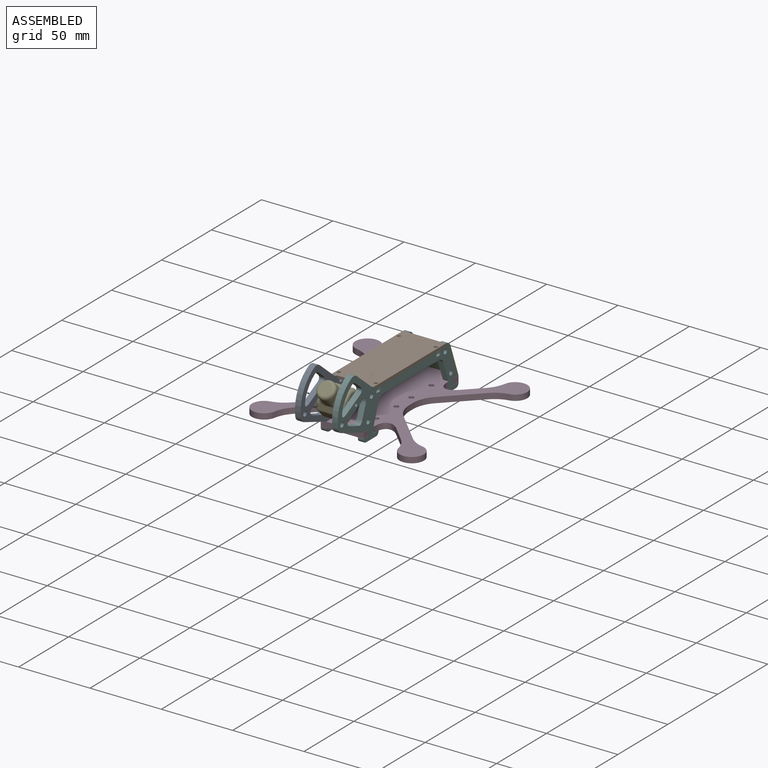
[diagram: assembled view]
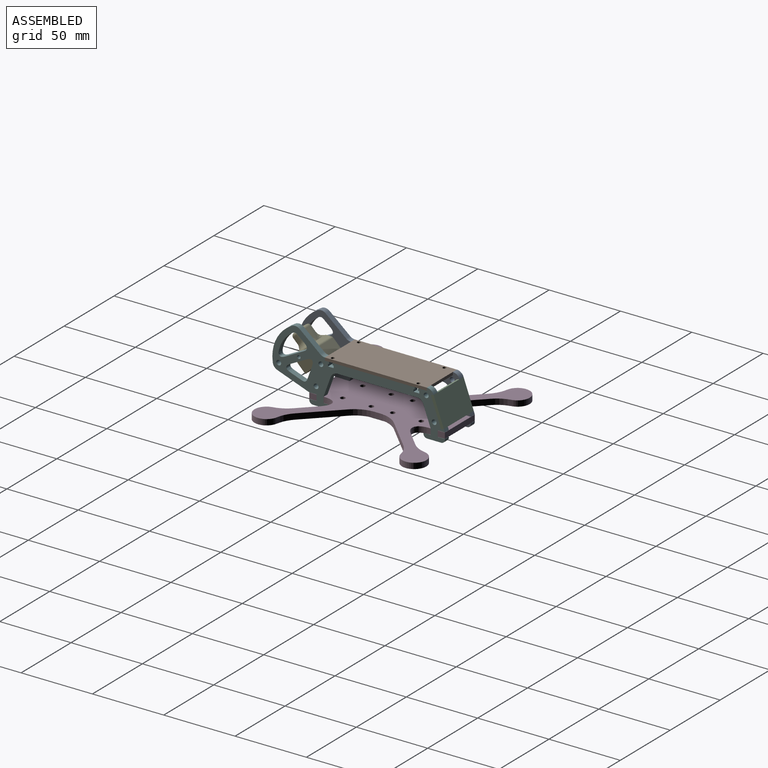
[diagram: assembled view, second angle]
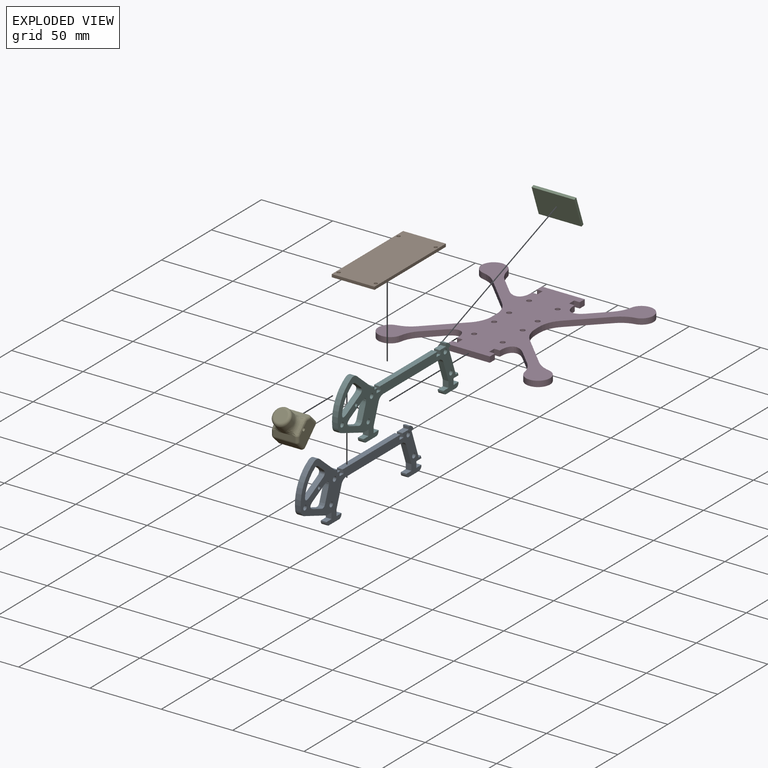
[diagram: exploded view]
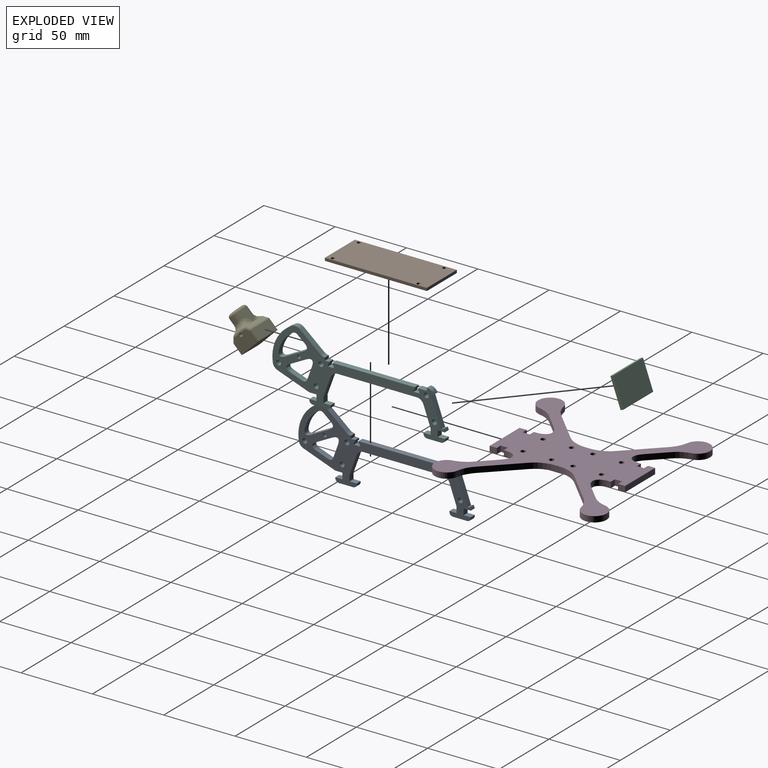
[diagram: exploded view, second angle]
ASSEMBLY  parts=6 mates=5
PART A: 79 faces, bbox 5.5x122x47.8 mm
  f0: plane 4x3mm, normal (0,0,1), area 12mm2, adj f3,f4,f60,f68
  f1: plane 57.7x4mm, normal (0,0,1), area 230.8mm2, adj f3,f4,f63,f74
  f2: plane 4x2mm, normal (0,0.94,0.34), area 8.5mm2, adj f3,f4,f15,f56
  f3: plane 122.04x47.78mm, normal (1,0,0), area 1410.4mm2, adj f0,f1,f2,f5,f6,f7,f8,f9
  f4: plane 122.04x47.78mm, normal (-1,0,0), area 1410.4mm2, adj f0,f1,f2,f5,f6,f7,f8,f9
  f5: plane 13.15x6.9mm, normal (0,-0.46,0.89), area 59.4mm2, adj f3,f4,f44,f45
  f6: cylinder r=22mm len=12.88mm, axis (-1,0,0), area 65.3mm2, adj f3,f4,f44,f48
  f7: plane 13.71x4.99mm, normal (0,-0.94,-0.34), area 58.4mm2, adj f3,f4,f8,f42
  f8: plane 4.2x4mm, normal (0,-1,0), area 16.8mm2, adj f3,f4,f7,f9
  f9: plane 5x4mm, normal (0,0,1), area 20mm2, adj f3,f4,f8,f10
  f10: plane 4x0.5mm, normal (0,-1,0), area 2mm2, adj f3,f4,f9,f33
  f11: plane 10x4mm, normal (0,0,-1), area 40mm2, adj f3,f4,f33,f34
  f12: plane 4x0.5mm, normal (0,1,0), area 2mm2, adj f3,f4,f13,f34
  f13: plane 5x4mm, normal (0,0,1), area 20mm2, adj f3,f4,f12,f14
  f14: plane 4.2x4mm, normal (0,1,0), area 16.8mm2, adj f3,f4,f13,f15
  f15: plane 5x4mm, normal (0,0,-1), area 20mm2, adj f2,f3,f4,f14
  f16: plane 14.43x12.11mm, normal (0,0.64,0.77), area 75.3mm2, adj f3,f4,f38,f39
  f17: cylinder r=26mm len=26.75mm, axis (-1,0,0), area 127.2mm2, adj f3,f4,f39,f40
  f18: plane 22.37x8.14mm, normal (0,-0.34,-0.94), area 95.2mm2, adj f3,f4,f19,f40
  f19: plane 5x4mm, normal (0,0,-1), area 20mm2, adj f3,f4,f18,f20
  f20: plane 4.2x4mm, normal (0,-1,0), area 16.8mm2, adj f3,f4,f19,f21
  f21: plane 5x4mm, normal (0,0,1), area 20mm2, adj f3,f4,f20,f22
  f22: plane 4x0.5mm, normal (0,-1,0), area 2mm2, adj f3,f4,f21,f35
  f23: plane 10x4mm, normal (0,0,-1), area 40mm2, adj f3,f4,f35,f36
  f24: plane 4x0.5mm, normal (0,1,0), area 2mm2, adj f3,f4,f25,f36
  f25: plane 5x4mm, normal (0,0,1), area 20mm2, adj f3,f4,f24,f26
  f26: plane 4.2x4mm, normal (0,1,0), area 16.8mm2, adj f3,f4,f25,f27
  f27: plane 13.71x4.99mm, normal (0,0.94,-0.34), area 58.4mm2, adj f3,f4,f26,f41
  f28: plane 7.74x4mm, normal (0,0.34,0.94), area 32.9mm2, adj f3,f4,f43,f47
  f29: plane 10.83x5.69mm, normal (0,0.46,-0.89), area 48.9mm2, adj f3,f4,f43,f46
  f30: plane 55.62x4mm, normal (0,0,-1), area 222.5mm2, adj f3,f4,f41,f42
  f31: plane 8.5x4mm, normal (0,-0.94,0.34), area 36.2mm2, adj f3,f4,f46,f47
  f32: plane 5.03x4.22mm, normal (0,-0.64,-0.77), area 26.3mm2, adj f3,f4,f45,f48
  f33: cylinder r=2.5mm len=4mm, axis (-1,0,0), area 15.7mm2, adj f3,f4,f10,f11
  f34: cylinder r=2.5mm len=4mm, axis (-1,0,0), area 15.7mm2, adj f3,f4,f11,f12
  f35: cylinder r=2.5mm len=4mm, axis (-1,0,0), area 15.7mm2, adj f3,f4,f22,f23
  f36: cylinder r=2.5mm len=4mm, axis (-1,0,0), area 15.7mm2, adj f3,f4,f23,f24
  f37: cylinder r=5mm len=4.7mm, axis (1,0,0), area 24.4mm2, adj f3,f4,f55,f58
  f38: cylinder r=5mm len=4mm, axis (-1,0,0), area 14mm2, adj f3,f4,f16,f60
  f39: cylinder r=5mm len=5.6mm, axis (-1,0,0), area 23.9mm2, adj f3,f4,f16,f17
  f40: cylinder r=5mm len=4mm, axis (-1,0,0), area 21.4mm2, adj f3,f4,f17,f18
  f41: cylinder r=5mm len=4.7mm, axis (1,0,0), area 24.4mm2, adj f3,f4,f27,f30
  f42: cylinder r=5mm len=4.7mm, axis (-1,0,0), area 24.4mm2, adj f3,f4,f7,f30
  f43: bspline ~6.38x5.48mm, area 34mm2, adj f3,f4,f28,f29
  f44: bspline ~6.6x6.05mm, area 34.1mm2, adj f3,f4,f5,f6
  f45: bspline ~4.95x4.4mm, area 25.5mm2, adj f3,f4,f5,f32
  f46: bspline ~7.29x6.87mm, area 37.4mm2, adj f3,f4,f29,f31
  f47: bspline ~4.4x3.85mm, area 19.3mm2, adj f3,f4,f28,f31
  f48: bspline ~4.4x3.55mm, area 15.3mm2, adj f3,f4,f6,f32
  f49: cylinder r=1.7mm len=4mm, axis (-1,0,0), area 42.7mm2, adj f3,f4
  f50: cylinder r=1.7mm len=4mm, axis (-1,0,0), area 42.7mm2, adj f3,f4
  f51: cylinder r=1.7mm len=4mm, axis (-1,0,0), area 42.7mm2, adj f3,f4
  f52: cylinder r=1.7mm len=4mm, axis (-1,0,0), area 42.7mm2, adj f3,f4
  f53: cylinder r=1.7mm len=4mm, axis (-1,0,0), area 42.7mm2, adj f3,f4
  f54: cylinder r=1.2mm len=4mm, axis (-1,0,0), area 30.2mm2, adj f3,f4
  f55: plane 4x1.88mm, normal (0,0.34,-0.94), area 8mm2, adj f3,f4,f37,f57
  f56: plane 4x1.88mm, normal (0,-0.34,0.94), area 8mm2, adj f2,f3,f4,f57
  f57: plane 19.71x7.17mm, normal (0,0.94,0.34), area 83.9mm2, adj f3,f4,f55,f56
  f58: plane 4x2mm, normal (0,-1,0), area 8mm2, adj f3,f4,f37,f59
  f59: plane 6.18x4mm, normal (0,0,1), area 24.7mm2, adj f3,f4,f58,f62
  f60: plane 4x2mm, normal (0,1,0), area 8mm2, adj f0,f3,f4,f38
  f61: plane 4x0.55mm, normal (0,0,-1), area 2.2mm2, adj f3,f4,f67,f75
  f62: plane 4x1.2mm, normal (0,-1,0), area 4.8mm2, adj f3,f4,f59,f75
  f63: plane 4x1.2mm, normal (0,1,0), area 4.8mm2, adj f1,f3,f4,f76
  f64: plane 4x0.55mm, normal (0,0,-1), area 2.2mm2, adj f3,f4,f65,f76
  f65: plane 4x1.6mm, normal (0,1,0), area 6.4mm2, adj f3,f4,f64,f66
  f66: plane 4x4mm, normal (0,0,1), area 16mm2, adj f3,f4,f65,f67
  f67: plane 4x1.6mm, normal (0,-1,0), area 6.4mm2, adj f3,f4,f61,f66
  f68: plane 4x1.2mm, normal (0,1,0), area 4.8mm2, adj f0,f3,f4,f78
  f69: plane 4x0.55mm, normal (0,0,-1), area 2.2mm2, adj f3,f4,f70,f78
  f70: plane 4x1.6mm, normal (0,1,0), area 6.4mm2, adj f3,f4,f69,f71
  f71: plane 4x4mm, normal (0,0,1), area 16mm2, adj f3,f4,f70,f72
  f72: plane 4x1.6mm, normal (0,-1,0), area 6.4mm2, adj f3,f4,f71,f73
  f73: plane 4x0.55mm, normal (0,0,-1), area 2.2mm2, adj f3,f4,f72,f77
  f74: plane 4x1.2mm, normal (0,-1,0), area 4.8mm2, adj f1,f3,f4,f77
  f75: cylinder r=0.3mm len=4mm, axis (1,0,0), area 1.9mm2, adj f3,f4,f61,f62
  f76: cylinder r=0.3mm len=4mm, axis (1,0,0), area 1.9mm2, adj f3,f4,f63,f64
  f77: cylinder r=0.3mm len=4mm, axis (1,0,0), area 1.9mm2, adj f3,f4,f73,f74
  f78: cylinder r=0.3mm len=4mm, axis (1,0,0), area 1.9mm2, adj f3,f4,f68,f69
PART B: 10 faces, bbox 30x71.5x2 mm
  f0: plane 71.48x30mm, normal (0,0,1), area 2126.3mm2, adj f1,f3,f4,f5,f6,f7,f8,f9
  f1: plane 71.48x2mm, normal (1,0,0), area 143mm2, adj f0,f2,f3,f4
  f2: plane 71.48x30mm, normal (0,0,-1), area 2126.3mm2, adj f1,f3,f4,f5,f6,f7,f8,f9
  f3: plane 30x2mm, normal (0,1,0), area 60mm2, adj f0,f1,f2,f5
  f4: plane 30x2mm, normal (0,-1,0), area 60mm2, adj f0,f1,f2,f5
  f5: plane 71.48x2mm, normal (-1,0,0), area 143mm2, adj f0,f2,f3,f4
  f6: cylinder r=1.2mm len=2.4mm, axis (0,0,-1), area 15.1mm2, adj f0,f2
  f7: cylinder r=1.2mm len=2.4mm, axis (0,0,-1), area 15.1mm2, adj f0,f2
  f8: cylinder r=1.2mm len=2.4mm, axis (0,0,-1), area 15.1mm2, adj f0,f2
  f9: cylinder r=1.2mm len=2.4mm, axis (0,0,-1), area 15.1mm2, adj f0,f2
PART C: 6 faces, bbox 30x21x2 mm
  f0: plane 30x20.98mm, normal (0,0,1), area 629.3mm2, adj f1,f3,f4,f5
  f1: plane 20.98x2mm, normal (1,0,0), area 42mm2, adj f0,f2,f3,f4
  f2: plane 30x20.98mm, normal (0,0,-1), area 629.3mm2, adj f1,f3,f4,f5
  f3: plane 30x2mm, normal (0,1,0), area 60mm2, adj f0,f1,f2,f5
  f4: plane 30x2mm, normal (0,-1,0), area 60mm2, adj f0,f1,f2,f5
  f5: plane 20.98x2mm, normal (-1,0,0), area 42mm2, adj f0,f2,f3,f4
PART D: 62 faces, bbox 121.6x121.6x5.5 mm
  f0: plane 10.92x10.92mm, normal (0.71,0.71,0), area 61.8mm2, adj f3,f4,f40,f46
  f1: cylinder r=8.5mm len=16.86mm, axis (0,0,-1), area 147.7mm2, adj f3,f4,f46,f47
  f2: plane 21.97x21.97mm, normal (-0.71,-0.71,0), area 124.3mm2, adj f3,f4,f42,f47
  f3: plane 121.58x121.58mm, normal (0,0,1), area 5097mm2, adj f0,f1,f2,f5,f6,f7,f8,f9
  f4: plane 121.58x121.58mm, normal (0,0,-1), area 5097mm2, adj f0,f1,f2,f5,f6,f7,f8,f9
  f5: plane 4x3.53mm, normal (-1,0,0), area 14.1mm2, adj f3,f4,f42,f43
  f6: plane 4x0.65mm, normal (-1,0,0), area 2.6mm2, adj f3,f4,f19,f38
  f7: plane 4x0.65mm, normal (1,0,0), area 2.6mm2, adj f3,f4,f27,f41
  f8: plane 4x3.53mm, normal (1,0,0), area 14.1mm2, adj f3,f4,f44,f45
  f9: plane 4x4mm, normal (0,1,0), area 16mm2, adj f3,f4,f10,f28
  f10: plane 5x4mm, normal (1,0,0), area 20mm2, adj f3,f4,f9,f11
  f11: plane 4x4mm, normal (0,-1,0), area 16mm2, adj f3,f4,f10,f12
  f12: plane 5x4mm, normal (1,0,0), area 20mm2, adj f3,f4,f11,f13
  f13: plane 30x4mm, normal (0,1,0), area 120mm2, adj f3,f4,f12,f14
  f14: plane 5x4mm, normal (-1,0,0), area 20mm2, adj f3,f4,f13,f15
  f15: plane 4x4mm, normal (0,-1,0), area 16mm2, adj f3,f4,f14,f16
  f16: plane 5x4mm, normal (-1,0,0), area 20mm2, adj f3,f4,f15,f17
  f17: plane 4x4mm, normal (0,1,0), area 16mm2, adj f3,f4,f16,f18
  f18: plane 4x0.65mm, normal (-1,0,0), area 2.6mm2, adj f3,f4,f17,f40
  f19: plane 4x4mm, normal (0,-1,0), area 16mm2, adj f3,f4,f6,f20
  f20: plane 5x4mm, normal (-1,0,0), area 20mm2, adj f3,f4,f19,f21
  f21: plane 4x4mm, normal (0,1,0), area 16mm2, adj f3,f4,f20,f22
  f22: plane 5x4mm, normal (-1,0,0), area 20mm2, adj f3,f4,f21,f23
  f23: plane 30x4mm, normal (0,-1,0), area 120mm2, adj f3,f4,f22,f24
  f24: plane 5x4mm, normal (1,0,0), area 20mm2, adj f3,f4,f23,f25
  f25: plane 4x4mm, normal (0,1,0), area 16mm2, adj f3,f4,f24,f26
  f26: plane 5x4mm, normal (1,0,0), area 20mm2, adj f3,f4,f25,f27
  f27: plane 4x4mm, normal (0,-1,0), area 16mm2, adj f3,f4,f7,f26
  f28: plane 4x0.65mm, normal (1,0,0), area 2.6mm2, adj f3,f4,f9,f39
  f29: plane 10.92x10.92mm, normal (-0.71,0.71,0), area 61.8mm2, adj f3,f4,f39,f52
  f30: plane 21.97x21.97mm, normal (0.71,-0.71,0), area 124.3mm2, adj f3,f4,f45,f53
  f31: cylinder r=8.5mm len=16.86mm, axis (0,0,-1), area 147.7mm2, adj f3,f4,f52,f53
  f32: plane 10.92x10.92mm, normal (-0.71,-0.71,0), area 61.8mm2, adj f3,f4,f41,f50
  f33: plane 21.97x21.97mm, normal (0.71,0.71,0), area 124.3mm2, adj f3,f4,f44,f51
  f34: cylinder r=8.5mm len=16.86mm, axis (0,0,-1), area 147.7mm2, adj f3,f4,f50,f51
  f35: plane 21.97x21.97mm, normal (-0.71,0.71,0), area 124.3mm2, adj f3,f4,f43,f48
  f36: cylinder r=8.5mm len=16.86mm, axis (0,0,-1), area 147.7mm2, adj f3,f4,f48,f49
  f37: plane 10.92x10.92mm, normal (0.71,-0.71,0), area 61.8mm2, adj f3,f4,f38,f49
  f38: bspline ~16.9x11.95mm, area 76mm2, adj f3,f4,f6,f37
  f39: bspline ~16.9x11.95mm, area 76mm2, adj f3,f4,f28,f29
  f40: bspline ~16.9x11.95mm, area 76mm2, adj f0,f3,f4,f18
  f41: bspline ~16.9x11.95mm, area 76mm2, adj f3,f4,f7,f32
  f42: cylinder r=20mm len=14.14mm, axis (0,0,1), area 62.8mm2, adj f2,f3,f4,f5
  f43: cylinder r=20mm len=14.14mm, axis (0,0,1), area 62.8mm2, adj f3,f4,f5,f35
  f44: cylinder r=20mm len=14.14mm, axis (0,0,-1), area 62.8mm2, adj f3,f4,f8,f33
  f45: cylinder r=20mm len=14.14mm, axis (0,0,1), area 62.8mm2, adj f3,f4,f8,f30
  f46: cylinder r=20mm len=10.48mm, axis (0,0,-1), area 48.1mm2, adj f0,f1,f3,f4
  f47: cylinder r=20mm len=10.48mm, axis (0,0,-1), area 48.1mm2, adj f1,f2,f3,f4
  f48: cylinder r=20mm len=10.48mm, axis (0,0,-1), area 48.1mm2, adj f3,f4,f35,f36
  f49: cylinder r=20mm len=10.48mm, axis (0,0,-1), area 48.1mm2, adj f3,f4,f36,f37
  f50: cylinder r=20mm len=10.48mm, axis (0,0,-1), area 48.1mm2, adj f3,f4,f32,f34
  f51: cylinder r=20mm len=10.48mm, axis (0,0,-1), area 48.1mm2, adj f3,f4,f33,f34
  f52: cylinder r=20mm len=10.48mm, axis (0,0,-1), area 48.1mm2, adj f3,f4,f29,f31
  f53: cylinder r=20mm len=10.48mm, axis (0,0,-1), area 48.1mm2, adj f3,f4,f30,f31
  f54: cylinder r=1.7mm len=4mm, axis (0,0,-1), area 42.7mm2, adj f3,f4
  f55: cylinder r=1.7mm len=4mm, axis (0,0,-1), area 42.7mm2, adj f3,f4
  f56: cylinder r=1.7mm len=4mm, axis (0,0,-1), area 42.7mm2, adj f3,f4
  f57: cylinder r=1.7mm len=4mm, axis (0,0,-1), area 42.7mm2, adj f3,f4
  f58: cylinder r=1.7mm len=4mm, axis (0,0,-1), area 42.7mm2, adj f3,f4
  f59: cylinder r=1.7mm len=4mm, axis (0,0,-1), area 42.7mm2, adj f3,f4
  f60: cylinder r=1.7mm len=4mm, axis (0,0,-1), area 42.7mm2, adj f3,f4
  f61: cylinder r=1.7mm len=4mm, axis (0,0,-1), area 42.7mm2, adj f3,f4
PART E: 52 faces, bbox 20.1x23.3x19.3 mm
  f0: plane 15x10.49mm, normal (-1,0,0), area 143.7mm2, adj f1,f6,f22,f24,f25,f26,f30,f34
  f1: bspline ~10.93x2.1mm, area 21.9mm2, adj f0,f14,f26,f30,f51
  f2: plane 8.6x8.6mm, normal (0,-1,0), area 58.1mm2, adj f49
  f3: plane 15x10.49mm, normal (1,0,0), area 143.7mm2, adj f6,f10,f29,f33,f35,f40,f41,f43
  f4: plane 15x7.67mm, normal (0,0,-1), area 115.1mm2, adj f6,f36,f41,f42
  f5: plane 15x7.67mm, normal (0,0,1), area 115.1mm2, adj f6,f25,f28,f29
  f6: plane 19x19mm, normal (0,1,0), area 357.6mm2, adj f0,f3,f4,f5,f25,f29,f36,f41
  f7: plane 15.26x2.88mm, normal (0,-0.71,-0.71), area 55.5mm2, adj f12,f21,f37,f42,f46
  f8: plane 15.26x2.88mm, normal (0,-0.71,0.71), area 55.5mm2, adj f16,f17,f24,f28,f33
  f9: cone r=0mm half-angle=59deg, axis (1,0,0), area 5.3mm2, adj f10
  f10: cylinder r=1.2mm len=3mm, axis (1,0,0), area 22.6mm2, adj f3,f9,f43
  f11: cylinder r=6.3mm len=12.6mm, axis (0,-1,0), area 219.7mm2, adj f12,f13,f14,f15,f16,f17,f18,f19
  f12: bspline ~9.93x5.45mm, area 24.6mm2, adj f7,f11,f13,f32,f34
  f13: torus R=11.3mm, axis (0,1,0), area 0.9mm2, adj f11,f12,f14,f30
  f14: bspline ~13.86x5.56mm, area 42mm2, adj f1,f11,f13,f15
  f15: torus R=11.3mm, axis (0,1,0), area 0.9mm2, adj f11,f14,f16,f26
  f16: bspline ~9.93x5.45mm, area 24.6mm2, adj f8,f11,f15,f22,f23
  f17: bspline ~9.93x5.45mm, area 24.6mm2, adj f8,f11,f18,f35,f38
  f18: torus R=11.3mm, axis (0,1,0), area 0.9mm2, adj f11,f17,f19,f40
  f19: bspline ~13.86x5.56mm, area 42mm2, adj f11,f18,f20,f43
  f20: torus R=11.3mm, axis (0,1,0), area 0.9mm2, adj f11,f19,f21,f45
  f21: bspline ~9.93x5.45mm, area 24.6mm2, adj f7,f11,f20,f47,f48
  f22: bspline ~2.15x2.09mm, area 1.4mm2, adj f0,f16,f23,f24
  f23: bspline ~1.89x1.7mm, area 0.3mm2, adj f16,f22,f26
  f24: cylinder r=2mm len=4.03mm, axis (0,0.71,0.71), area 11mm2, adj f0,f8,f22,f27
  f25: cylinder r=2mm len=7.67mm, axis (0,-1,0), area 24.1mm2, adj f0,f5,f6,f27
  f26: bspline ~3.08x2.33mm, area 0.5mm2, adj f0,f1,f15,f23
  f27: sphere r=2mm, area 3.9mm2, adj f24,f25,f28
  f28: cylinder r=2mm len=15mm, axis (-1,0,0), area 23.6mm2, adj f5,f8,f27,f31
  f29: cylinder r=2mm len=7.67mm, axis (0,1,0), area 24.1mm2, adj f3,f5,f6,f31
  f30: bspline ~3.08x2.33mm, area 0.5mm2, adj f0,f1,f13,f32
  f31: sphere r=2mm, area 3.1mm2, adj f28,f29,f33
  f32: bspline ~1.89x1.7mm, area 0.5mm2, adj f12,f30,f34
  f33: cylinder r=2mm len=4.03mm, axis (0,0.71,0.71), area 11mm2, adj f3,f8,f31,f35
  f34: bspline ~2.15x2.09mm, area 1.3mm2, adj f0,f12,f32,f37
  f35: bspline ~2.15x2.09mm, area 1.4mm2, adj f3,f17,f33,f38
  f36: cylinder r=2mm len=7.67mm, axis (0,1,0), area 24.1mm2, adj f0,f4,f6,f39
  f37: cylinder r=2mm len=4.03mm, axis (0,-0.71,0.71), area 11mm2, adj f0,f7,f34,f39
  f38: bspline ~1.89x1.7mm, area 0.3mm2, adj f17,f35,f40
  f39: sphere r=2mm, area 3.9mm2, adj f36,f37,f42
  f40: bspline ~3.08x2.33mm, area 0.5mm2, adj f3,f18,f38,f43
  f41: cylinder r=2mm len=7.67mm, axis (0,-1,0), area 24.1mm2, adj f3,f4,f6,f44
  f42: cylinder r=2mm len=15mm, axis (-1,0,0), area 23.6mm2, adj f4,f7,f39,f44
  f43: bspline ~10.4x2.05mm, area 21.9mm2, adj f3,f10,f19,f40,f45
  f44: sphere r=2mm, area 3.1mm2, adj f41,f42,f46
  f45: bspline ~3.08x2.33mm, area 0.5mm2, adj f3,f20,f43,f47
  f46: cylinder r=2mm len=4.03mm, axis (0,-0.71,0.71), area 11mm2, adj f3,f7,f44,f48
  f47: bspline ~1.89x1.7mm, area 0.5mm2, adj f21,f45,f48
  f48: bspline ~2.15x2.09mm, area 1.3mm2, adj f3,f21,f46,f47
  f49: torus R=4.3mm, axis (0,-1,0), area 110mm2, adj f2,f11
  f50: cone r=0mm half-angle=59deg, axis (-1,0,0), area 5.3mm2, adj f51
  f51: cylinder r=1.2mm len=3mm, axis (-1,0,0), area 22.6mm2, adj f0,f1,f50
PART F: same geometry as A
PLACE A t=(-15,0,29.1)mm
PLACE B t=(-15,34.9,27.1)mm
PLACE C rot(axis=(-1,0,0),70deg) t=(15,37.72,25.13)mm
PLACE D at identity
PLACE E rot(axis=(0,-0.92,0.38),180deg) t=(0,-48.24,17.89)mm
PLACE F t=(11,0,29.1)mm
MATE fastened F.f14 <-> D.f11  axis (0,1,0) through (13,42.5,2)mm
MATE fastened A.f8 <-> D.f17  axis (0,-1,0) through (-13,37.5,2)mm
MATE fastened F.f57 <-> C.f2  axis (0,0.94,0.34) through (15,37.72,25.13)mm
MATE fastened A.f59 <-> B.f2  axis (0,0,1) through (-15,34.9,27.1)mm
MATE revolute E.f9 <-> F.f54  axis (1,0,0) through (9.5,-54.85,24.5)mm
